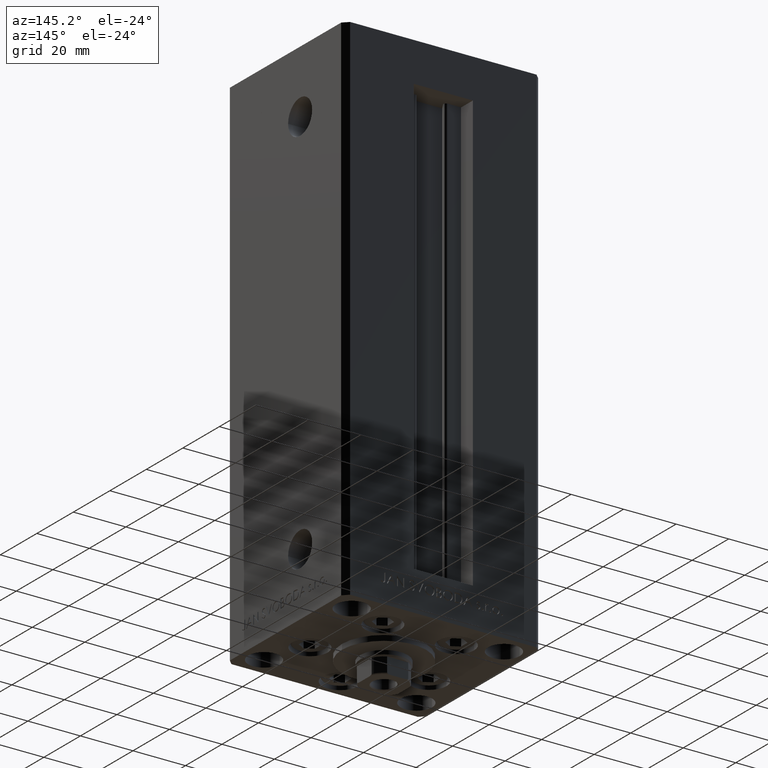
[diagram: clean part render]
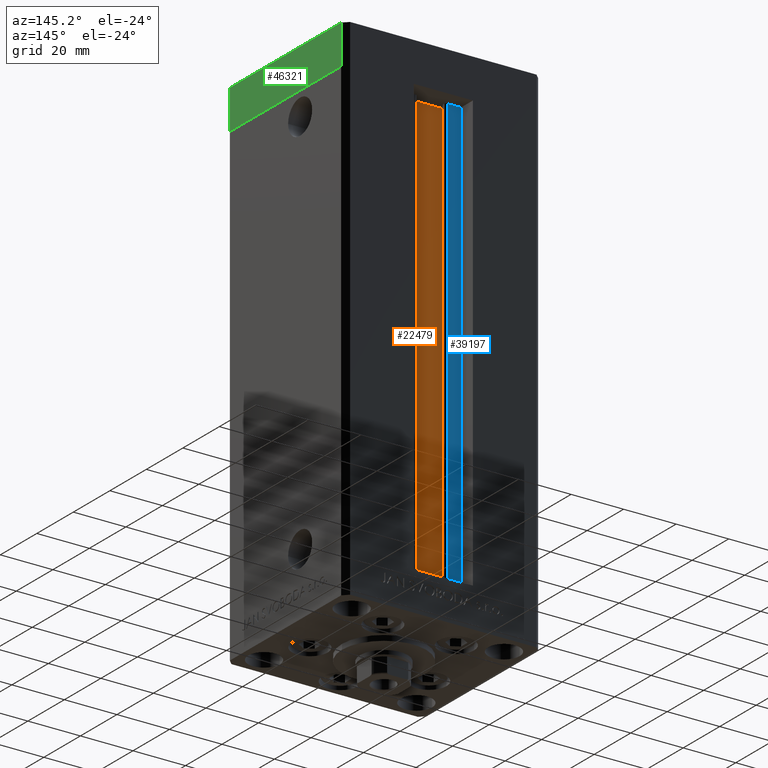
[diagram: same view with three faces highlighted in distinct colors, each labeled with its STEP entity id]
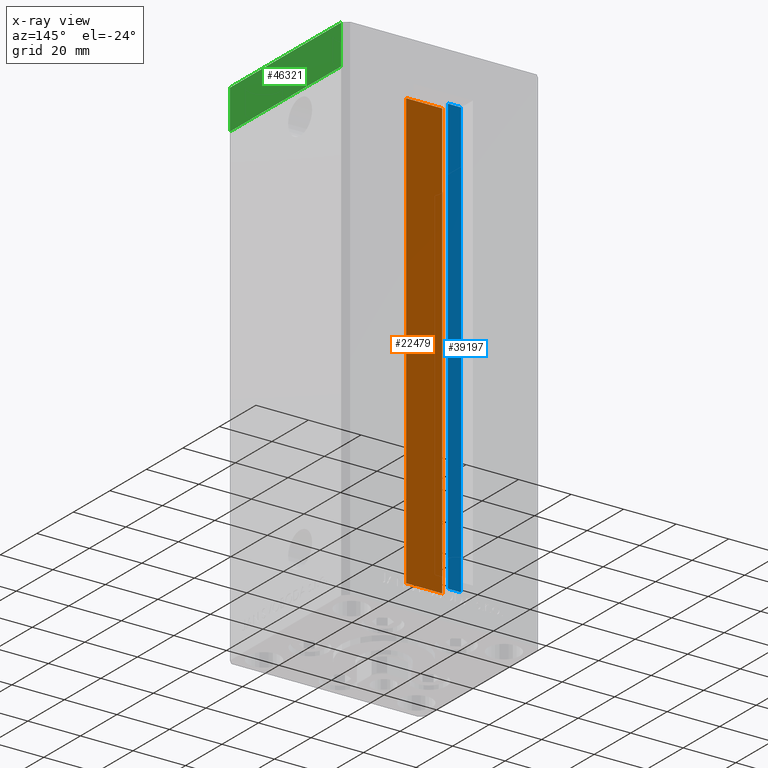
[diagram: x-ray of the same camera — body ghosted, the three highlighted faces saturated]
A machine part, auxiliary view with three faces highlighted in distinct colors.
The next image is the same camera in x-ray (body ghosted, the three faces saturated) — at least one of them is partly hidden behind the body in this view.
Their STEP definitions:

[orange] entity #22479 — the highlighted planar face has unit normal (0, -1, 0).
#922 = VECTOR ( 'NONE', #24879, 1000.000000000000000 ) ;
#1451 = DIRECTION ( 'NONE',  ( 1.000000000000000000, -0.000000000000000000, -0.000000000000000000 ) ) ;
#2194 = EDGE_LOOP ( 'NONE', ( #25768, #16198, #28055, #17415 ) ) ;
#2990 = VERTEX_POINT ( 'NONE', #46618 ) ;
#5962 = CARTESIAN_POINT ( 'NONE',  ( 6.876153656360466826, 21.99999999999986855, 0.000000000000000000 ) ) ;
#6610 = CARTESIAN_POINT ( 'NONE',  ( 6.876153656360466826, 21.99999999999986855, 0.000000000000000000 ) ) ;
#8872 = VERTEX_POINT ( 'NONE', #39781 ) ;
#8873 = LINE ( 'NONE', #12607, #27314 ) ;
#12607 = CARTESIAN_POINT ( 'NONE',  ( 0.000000000000000000, 21.99999999999986855, 166.0000000000000000 ) ) ;
#13193 = LINE ( 'NONE', #20905, #922 ) ;
#16198 = ORIENTED_EDGE ( 'NONE', *, *, #22022, .F. ) ;
#17265 = VERTEX_POINT ( 'NONE', #5962 ) ;
#17415 = ORIENTED_EDGE ( 'NONE', *, *, #36098, .F. ) ;
#18065 = DIRECTION ( 'NONE',  ( 0.000000000000000000, 0.000000000000000000, -1.000000000000000000 ) ) ;
#20905 = CARTESIAN_POINT ( 'NONE',  ( -6.876153656360466826, 21.99999999999986855, 0.000000000000000000 ) ) ;
#21559 = FACE_OUTER_BOUND ( 'NONE', #2194, .T. ) ;
#22022 = EDGE_CURVE ( 'NONE', #22969, #17265, #28595, .T. ) ;
#22479 = ADVANCED_FACE ( 'NONE', ( #21559 ), #37528, .F. ) ;
#22969 = VERTEX_POINT ( 'NONE', #25664 ) ;
#24879 = DIRECTION ( 'NONE',  ( -0.000000000000000000, -0.000000000000000000, 1.000000000000000000 ) ) ;
#25102 = CARTESIAN_POINT ( 'NONE',  ( 6.876153656360466826, 21.99999999999986855, 0.000000000000000000 ) ) ;
#25664 = CARTESIAN_POINT ( 'NONE',  ( -6.876153656360466826, 21.99999999999986855, 0.000000000000000000 ) ) ;
#25768 = ORIENTED_EDGE ( 'NONE', *, *, #26068, .F. ) ;
#26068 = EDGE_CURVE ( 'NONE', #17265, #2990, #29557, .T. ) ;
#26425 = AXIS2_PLACEMENT_3D ( 'NONE', #6610, #37273, #18065 ) ;
#27314 = VECTOR ( 'NONE', #34810, 1000.000000000000000 ) ;
#28055 = ORIENTED_EDGE ( 'NONE', *, *, #33394, .T. ) ;
#28595 = LINE ( 'NONE', #25102, #43155 ) ;
#29557 = LINE ( 'NONE', #33326, #36205 ) ;
#33326 = CARTESIAN_POINT ( 'NONE',  ( 6.876153656360466826, 21.99999999999986855, 0.000000000000000000 ) ) ;
#33394 = EDGE_CURVE ( 'NONE', #22969, #8872, #13193, .T. ) ;
#34810 = DIRECTION ( 'NONE',  ( -1.000000000000000000, 0.000000000000000000, 0.000000000000000000 ) ) ;
#36098 = EDGE_CURVE ( 'NONE', #2990, #8872, #8873, .T. ) ;
#36205 = VECTOR ( 'NONE', #48522, 1000.000000000000000 ) ;
#37273 = DIRECTION ( 'NONE',  ( 0.000000000000000000, -1.000000000000000000, -0.000000000000000000 ) ) ;
#37528 = PLANE ( 'NONE',  #26425 ) ;
#39781 = CARTESIAN_POINT ( 'NONE',  ( -6.876153656360466826, 21.99999999999986855, 166.0000000000000000 ) ) ;
#43155 = VECTOR ( 'NONE', #1451, 1000.000000000000000 ) ;
#46618 = CARTESIAN_POINT ( 'NONE',  ( 6.876153656360466826, 21.99999999999986855, 166.0000000000000000 ) ) ;
#48522 = DIRECTION ( 'NONE',  ( -0.000000000000000000, -0.000000000000000000, 1.000000000000000000 ) ) ;

[blue] entity #39197 — the highlighted planar face has unit normal (0, -1, 0).
#1638 = CARTESIAN_POINT ( 'NONE',  ( -11.25000000000000178, 25.99999999999999289, 0.000000000000000000 ) ) ;
#5983 = LINE ( 'NONE', #21178, #26739 ) ;
#8101 = ORIENTED_EDGE ( 'NONE', *, *, #39660, .F. ) ;
#9241 = CARTESIAN_POINT ( 'NONE',  ( -6.183333333334001480, 25.99999999999999289, 166.0000000000000000 ) ) ;
#12126 = ORIENTED_EDGE ( 'NONE', *, *, #31392, .T. ) ;
#12431 = EDGE_LOOP ( 'NONE', ( #44154, #8101, #12126, #37959 ) ) ;
#12478 = CARTESIAN_POINT ( 'NONE',  ( -6.183333333334001480, 25.99999999999999289, 0.000000000000000000 ) ) ;
#14390 = VECTOR ( 'NONE', #46781, 1000.000000000000000 ) ;
#14592 = DIRECTION ( 'NONE',  ( 0.000000000000000000, 0.000000000000000000, -1.000000000000000000 ) ) ;
#15474 = AXIS2_PLACEMENT_3D ( 'NONE', #44257, #40776, #14592 ) ;
#15875 = LINE ( 'NONE', #1638, #14390 ) ;
#16683 = DIRECTION ( 'NONE',  ( -0.000000000000000000, -0.000000000000000000, 1.000000000000000000 ) ) ;
#17259 = EDGE_CURVE ( 'NONE', #26955, #47368, #27899, .T. ) ;
#17343 = FACE_OUTER_BOUND ( 'NONE', #12431, .T. ) ;
#20475 = VERTEX_POINT ( 'NONE', #35482 ) ;
#20700 = DIRECTION ( 'NONE',  ( -1.000000000000000000, 0.000000000000000000, 0.000000000000000000 ) ) ;
#21178 = CARTESIAN_POINT ( 'NONE',  ( 0.000000000000000000, 25.99999999999999289, 166.0000000000000000 ) ) ;
#21816 = VECTOR ( 'NONE', #34478, 1000.000000000000000 ) ;
#22062 = PLANE ( 'NONE',  #15474 ) ;
#26739 = VECTOR ( 'NONE', #20700, 1000.000000000000000 ) ;
#26955 = VERTEX_POINT ( 'NONE', #37381 ) ;
#27899 = LINE ( 'NONE', #12478, #35845 ) ;
#30228 = LINE ( 'NONE', #38228, #21816 ) ;
#31392 = EDGE_CURVE ( 'NONE', #20475, #32167, #15875, .T. ) ;
#32167 = VERTEX_POINT ( 'NONE', #42669 ) ;
#34478 = DIRECTION ( 'NONE',  ( 1.000000000000000000, -0.000000000000000000, -0.000000000000000000 ) ) ;
#35482 = CARTESIAN_POINT ( 'NONE',  ( -11.25000000000000178, 25.99999999999999289, 0.000000000000000000 ) ) ;
#35845 = VECTOR ( 'NONE', #16683, 1000.000000000000000 ) ;
#37381 = CARTESIAN_POINT ( 'NONE',  ( -6.183333333334001480, 25.99999999999999289, 0.000000000000000000 ) ) ;
#37959 = ORIENTED_EDGE ( 'NONE', *, *, #47391, .F. ) ;
#38228 = CARTESIAN_POINT ( 'NONE',  ( -6.183333333334001480, 25.99999999999999289, 0.000000000000000000 ) ) ;
#39197 = ADVANCED_FACE ( 'NONE', ( #17343 ), #22062, .F. ) ;
#39660 = EDGE_CURVE ( 'NONE', #20475, #26955, #30228, .T. ) ;
#40776 = DIRECTION ( 'NONE',  ( 0.000000000000000000, -1.000000000000000000, -0.000000000000000000 ) ) ;
#42669 = CARTESIAN_POINT ( 'NONE',  ( -11.25000000000000178, 25.99999999999999289, 166.0000000000000000 ) ) ;
#44154 = ORIENTED_EDGE ( 'NONE', *, *, #17259, .F. ) ;
#44257 = CARTESIAN_POINT ( 'NONE',  ( -6.183333333334001480, 25.99999999999999289, 0.000000000000000000 ) ) ;
#46781 = DIRECTION ( 'NONE',  ( -0.000000000000000000, -0.000000000000000000, 1.000000000000000000 ) ) ;
#47368 = VERTEX_POINT ( 'NONE', #9241 ) ;
#47391 = EDGE_CURVE ( 'NONE', #47368, #32167, #5983, .T. ) ;

[green] entity #46321 — the highlighted planar face has unit normal (1, 0, 0).
#1421 = VECTOR ( 'NONE', #47572, 1000.000000000000000 ) ;
#1896 = VERTEX_POINT ( 'NONE', #43642 ) ;
#2228 = FACE_OUTER_BOUND ( 'NONE', #29428, .T. ) ;
#5025 = ORIENTED_EDGE ( 'NONE', *, *, #26728, .T. ) ;
#6100 = DIRECTION ( 'NONE',  ( 0.000000000000000000, 0.000000000000000000, 1.000000000000000000 ) ) ;
#7065 = EDGE_CURVE ( 'NONE', #20914, #9790, #17397, .T. ) ;
#9722 = PLANE ( 'NONE',  #45827 ) ;
#9790 = VERTEX_POINT ( 'NONE', #34154 ) ;
#10553 = ORIENTED_EDGE ( 'NONE', *, *, #12690, .F. ) ;
#12690 = EDGE_CURVE ( 'NONE', #33446, #20914, #48712, .T. ) ;
#13701 = CARTESIAN_POINT ( 'NONE',  ( 37.50000000000001421, -30.50000000000000711, -15.00000000000000000 ) ) ;
#14778 = EDGE_CURVE ( 'NONE', #33446, #1896, #16177, .T. ) ;
#16177 = LINE ( 'NONE', #20889, #36578 ) ;
#17189 = DIRECTION ( 'NONE',  ( 1.000000000000000000, 1.478780668045803018E-15, -0.000000000000000000 ) ) ;
#17397 = LINE ( 'NONE', #21381, #1421 ) ;
#20805 = ORIENTED_EDGE ( 'NONE', *, *, #7065, .F. ) ;
#20889 = CARTESIAN_POINT ( 'NONE',  ( 37.50000000000001421, -30.50000000000000711, -15.00000000000000000 ) ) ;
#20914 = VERTEX_POINT ( 'NONE', #45353 ) ;
#21381 = CARTESIAN_POINT ( 'NONE',  ( 37.50000000000001421, -30.50000000000000711, 0.000000000000000000 ) ) ;
#22955 = VECTOR ( 'NONE', #6100, 1000.000000000000000 ) ;
#25031 = CARTESIAN_POINT ( 'NONE',  ( 37.50000000000001421, -30.50000000000000711, -15.00000000000000000 ) ) ;
#26728 = EDGE_CURVE ( 'NONE', #1896, #9790, #44651, .T. ) ;
#28116 = DIRECTION ( 'NONE',  ( -1.478780668045802821E-15, 1.000000000000000000, 0.000000000000000000 ) ) ;
#29360 = VECTOR ( 'NONE', #29939, 1000.000000000000000 ) ;
#29428 = EDGE_LOOP ( 'NONE', ( #20805, #10553, #32825, #5025 ) ) ;
#29939 = DIRECTION ( 'NONE',  ( 0.000000000000000000, 0.000000000000000000, 1.000000000000000000 ) ) ;
#32399 = DIRECTION ( 'NONE',  ( -1.478780668045803018E-15, 1.000000000000000000, 0.000000000000000000 ) ) ;
#32825 = ORIENTED_EDGE ( 'NONE', *, *, #14778, .T. ) ;
#33446 = VERTEX_POINT ( 'NONE', #42294 ) ;
#34154 = CARTESIAN_POINT ( 'NONE',  ( 37.49999999999992184, 30.50000000000001066, 0.000000000000000000 ) ) ;
#36578 = VECTOR ( 'NONE', #28116, 1000.000000000000000 ) ;
#40674 = CARTESIAN_POINT ( 'NONE',  ( 37.49999999999992184, 30.50000000000001066, -15.00000000000000000 ) ) ;
#42294 = CARTESIAN_POINT ( 'NONE',  ( 37.50000000000001421, -30.50000000000000711, -15.00000000000000000 ) ) ;
#43642 = CARTESIAN_POINT ( 'NONE',  ( 37.49999999999992184, 30.50000000000001066, -15.00000000000000000 ) ) ;
#44651 = LINE ( 'NONE', #40674, #29360 ) ;
#45353 = CARTESIAN_POINT ( 'NONE',  ( 37.50000000000001421, -30.50000000000000711, 0.000000000000000000 ) ) ;
#45827 = AXIS2_PLACEMENT_3D ( 'NONE', #13701, #17189, #32399 ) ;
#46321 = ADVANCED_FACE ( 'NONE', ( #2228 ), #9722, .T. ) ;
#47572 = DIRECTION ( 'NONE',  ( -1.478780668045802821E-15, 1.000000000000000000, 0.000000000000000000 ) ) ;
#48712 = LINE ( 'NONE', #25031, #22955 ) ;